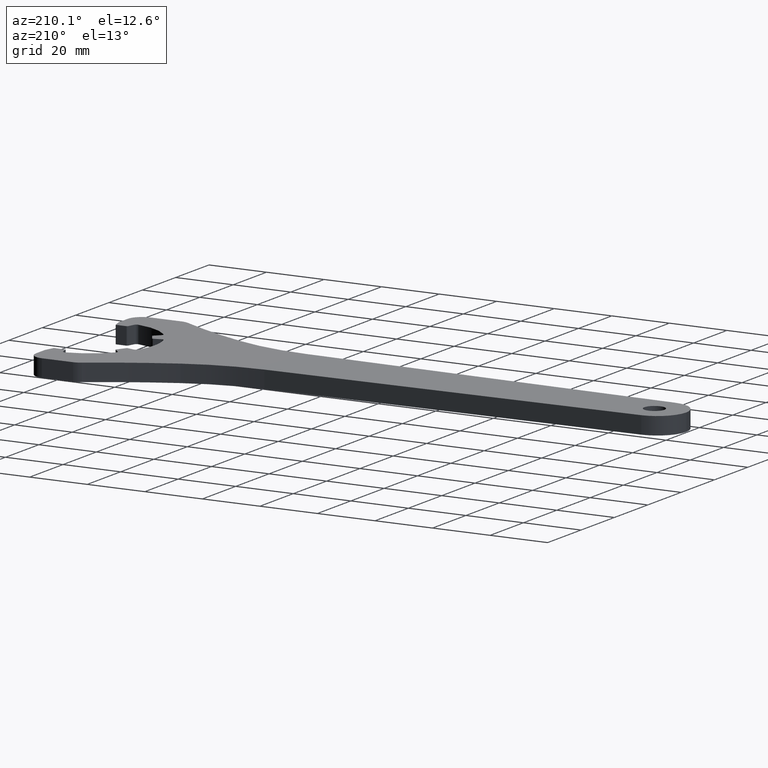
[diagram: clean part render]
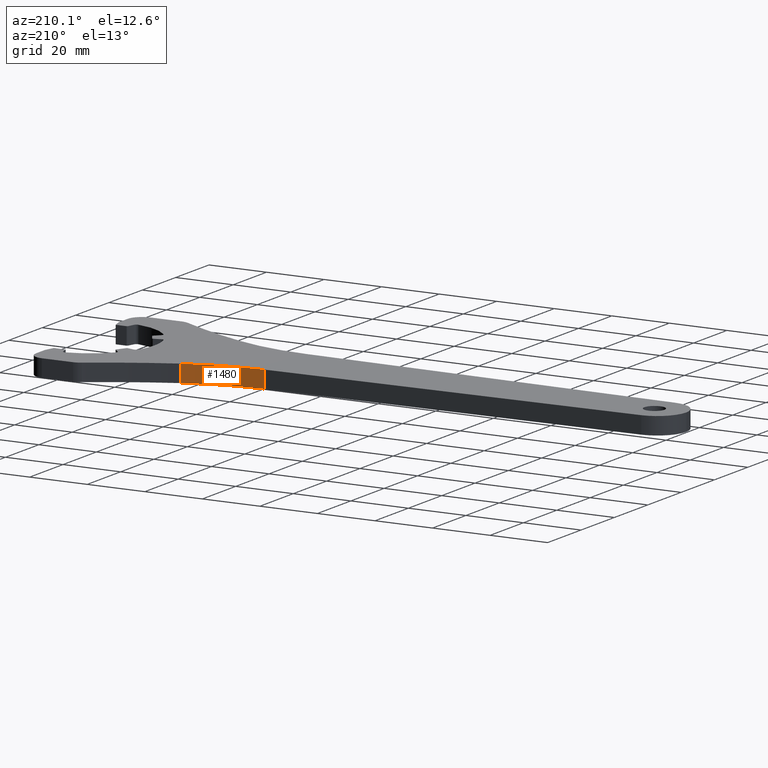
[diagram: same view with one face highlighted and labeled with its STEP entity id]
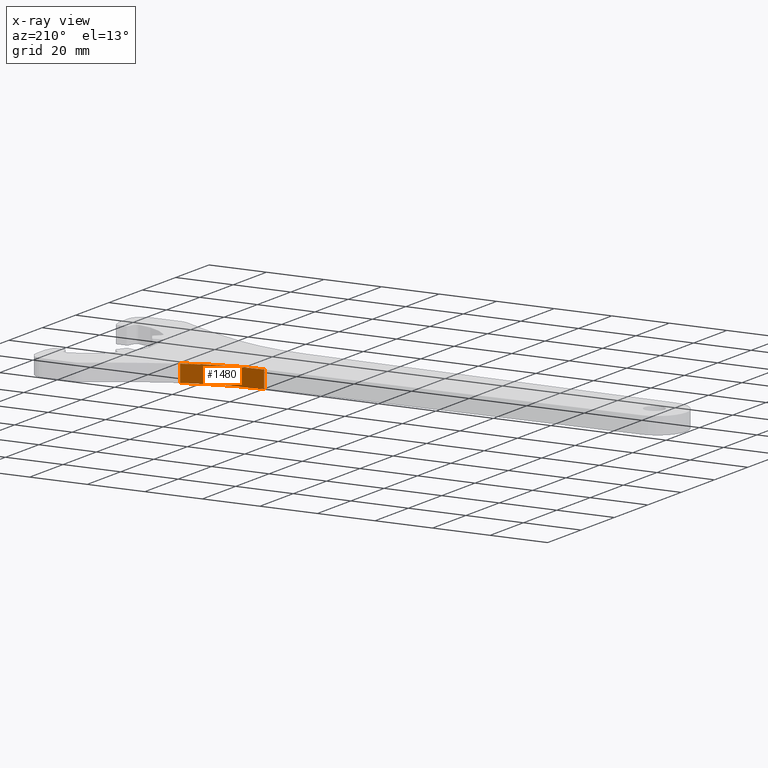
[diagram: x-ray of the same camera — body ghosted, the highlighted face saturated]
A machine part, auxiliary view. The second image highlights one B-rep face of the part: STEP entity #1480.
The next image is the same camera in x-ray: the body ghosted, the highlighted face saturated — about 0% of this face is hidden behind the body in this view.
In plain terms, the highlighted cylindrical surface (partial cylindrical patch) has radius 70.1107 mm, axis along (0, 0, -1).
Its self-contained STEP definition (entity closure, byte-faithful):
#7 = CYLINDRICAL_SURFACE ( 'NONE', #185, 70.11068877599998900 ) ;
#73 = EDGE_CURVE ( 'NONE', #388, #825, #570, .T. ) ;
#110 = CARTESIAN_POINT ( 'NONE',  ( -68.93808457000000100, 82.58333333299998500, 6.000000000000000000 ) ) ;
#185 = AXIS2_PLACEMENT_3D ( 'NONE', #110, #787, #1057 ) ;
#272 = CARTESIAN_POINT ( 'NONE',  ( -67.59248863793996500, 12.48555838900116100, -2.168404344971008900E-016 ) ) ;
#290 = EDGE_CURVE ( 'NONE', #388, #549, #353, .T. ) ;
#313 = EDGE_CURVE ( 'NONE', #549, #1069, #518, .T. ) ;
#353 = LINE ( 'NONE', #766, #508 ) ;
#370 = DIRECTION ( 'NONE',  ( -0.0000000000000000000, -0.0000000000000000000, 1.000000000000000000 ) ) ;
#388 = VERTEX_POINT ( 'NONE', #401 ) ;
#401 = CARTESIAN_POINT ( 'NONE',  ( -41.59610276938307300, 18.02386685593287300, 0.0000000000000000000 ) ) ;
#422 = DIRECTION ( 'NONE',  ( 0.0000000000000000000, 0.0000000000000000000, -1.000000000000000000 ) ) ;
#508 = VECTOR ( 'NONE', #370, 1000.000000000000000 ) ;
#514 = CARTESIAN_POINT ( 'NONE',  ( -68.93808457000000100, 82.58333333299998500, 0.0000000000000000000 ) ) ;
#518 = CIRCLE ( 'NONE', #751, 70.11068877599998900 ) ;
#549 = VERTEX_POINT ( 'NONE', #1749 ) ;
#552 = DIRECTION ( 'NONE',  ( 0.0000000000000000000, 0.0000000000000000000, 1.000000000000000000 ) ) ;
#570 = CIRCLE ( 'NONE', #1220, 70.11068877599998900 ) ;
#641 = DIRECTION ( 'NONE',  ( -1.000000000000000000, 0.0000000000000000000, 0.0000000000000000000 ) ) ;
#716 = EDGE_CURVE ( 'NONE', #825, #1069, #1504, .T. ) ;
#720 = FACE_OUTER_BOUND ( 'NONE', #1114, .T. ) ;
#751 = AXIS2_PLACEMENT_3D ( 'NONE', #1221, #422, #1348 ) ;
#766 = CARTESIAN_POINT ( 'NONE',  ( -41.59610281094099100, 18.02386683876855500, 2.999999999999999600 ) ) ;
#787 = DIRECTION ( 'NONE',  ( 0.0000000000000000000, 0.0000000000000000000, -1.000000000000000000 ) ) ;
#825 = VERTEX_POINT ( 'NONE', #272 ) ;
#885 = ORIENTED_EDGE ( 'NONE', *, *, #290, .F. ) ;
#963 = CARTESIAN_POINT ( 'NONE',  ( -67.59248863845272100, 12.48555840042059400, 6.000000000000000000 ) ) ;
#972 = ORIENTED_EDGE ( 'NONE', *, *, #716, .T. ) ;
#1057 = DIRECTION ( 'NONE',  ( -1.000000000000000000, 0.0000000000000000000, 0.0000000000000000000 ) ) ;
#1069 = VERTEX_POINT ( 'NONE', #963 ) ;
#1114 = EDGE_LOOP ( 'NONE', ( #1233, #885, #1562, #972 ) ) ;
#1144 = VECTOR ( 'NONE', #552, 1000.000000000000000 ) ;
#1220 = AXIS2_PLACEMENT_3D ( 'NONE', #514, #1452, #641 ) ;
#1221 = CARTESIAN_POINT ( 'NONE',  ( -68.93808457000000100, 82.58333333299998500, 6.000000000000000000 ) ) ;
#1225 = CARTESIAN_POINT ( 'NONE',  ( -67.59248863799999200, 12.48555838900000100, 3.000000000000000000 ) ) ;
#1233 = ORIENTED_EDGE ( 'NONE', *, *, #313, .F. ) ;
#1348 = DIRECTION ( 'NONE',  ( -1.000000000000000000, 0.0000000000000000000, 0.0000000000000000000 ) ) ;
#1452 = DIRECTION ( 'NONE',  ( 0.0000000000000000000, 0.0000000000000000000, -1.000000000000000000 ) ) ;
#1480 = ADVANCED_FACE ( 'NONE', ( #720 ), #7, .F. ) ;
#1504 = LINE ( 'NONE', #1225, #1144 ) ;
#1562 = ORIENTED_EDGE ( 'NONE', *, *, #73, .T. ) ;
#1749 = CARTESIAN_POINT ( 'NONE',  ( -41.59610276953969800, 18.02386685630269600, 6.000000000000000000 ) ) ;